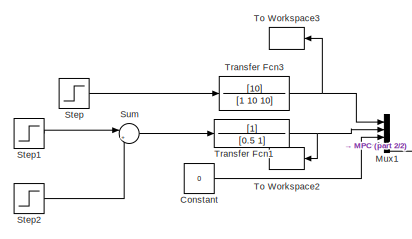
[diagram: root canvas - part 1/2, top left region]
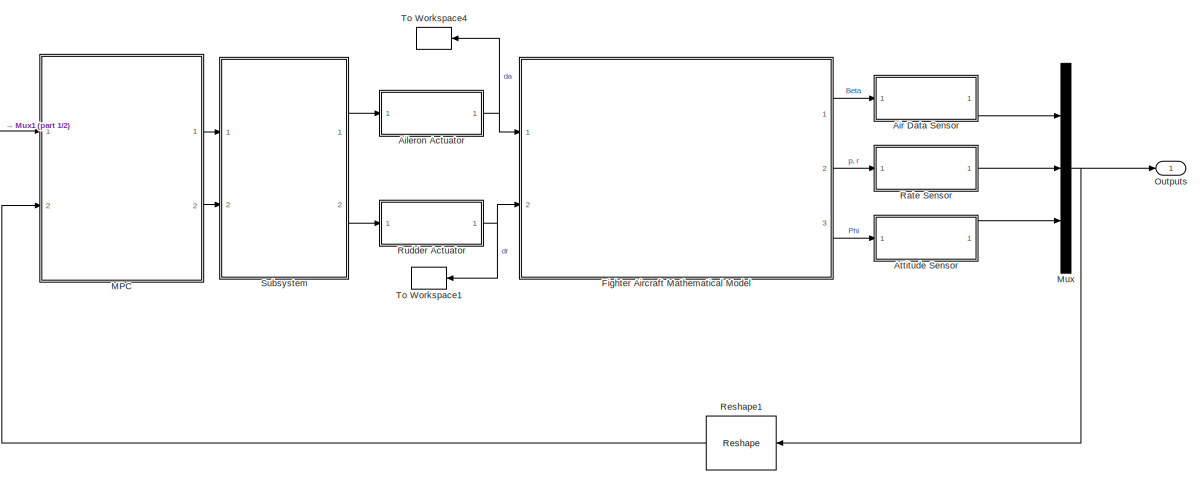
[diagram: root canvas - part 2/2, most of the canvas]
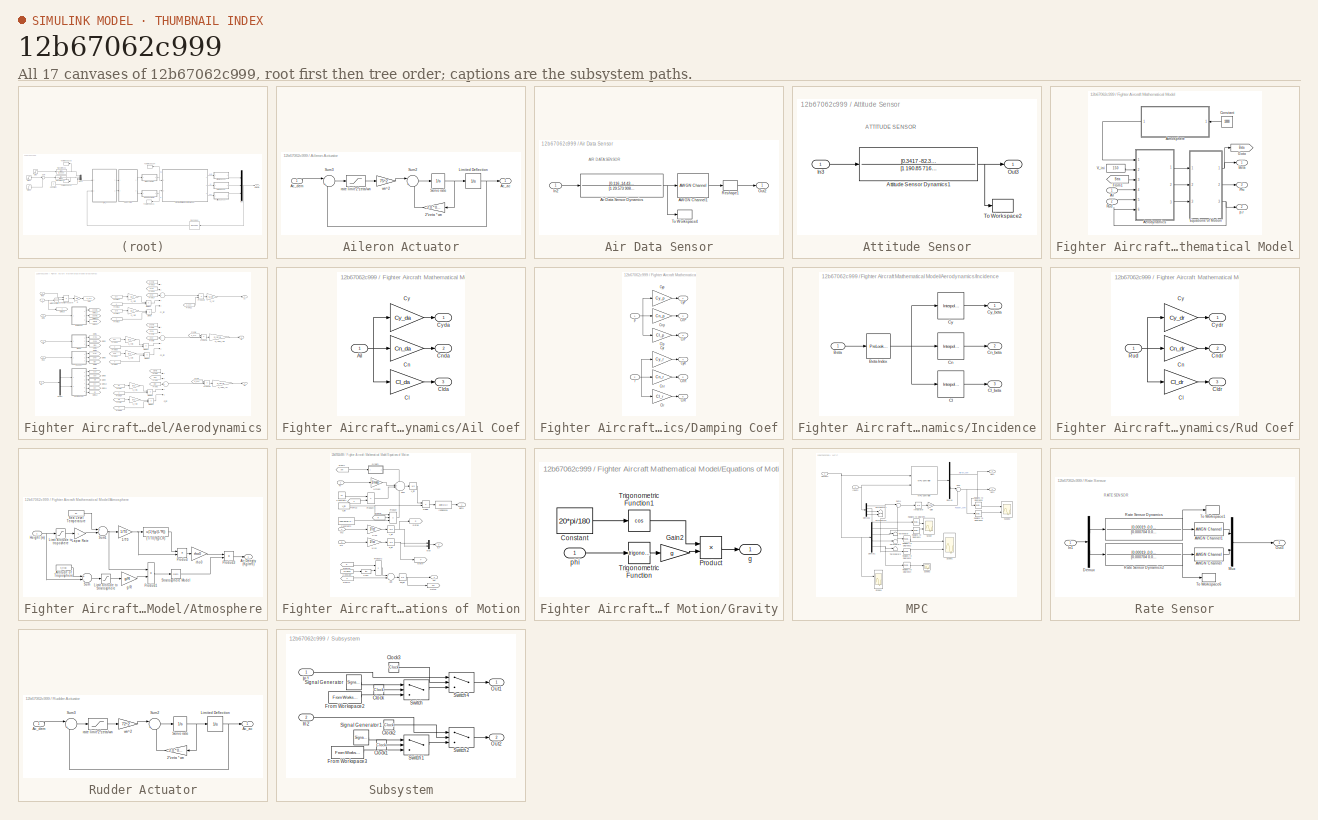
[diagram: thumbnail index - all 17 canvases of the model, root first then tree order]
MODEL slx_12b67062c999
KIND model
CONFIG AbsTol = auto
CONFIG EnableMultiTasking = off
CONFIG FixedStep = dt_sim
CONFIG MaxStep = auto
CONFIG MinStep = auto
CONFIG RelTol = 1e-3
CONFIG SampleTimeConstraint = Unconstrained
CONFIG Solver = ode4
CONFIG SolverName = ode4
CONFIG StartTime = 0.0
CONFIG StopTime = T_final
BLOCK [SubSystem] Aileron Actuator
  Ports = [1, 1]
  RequestExecContextInheritance = off
BLOCK [Gain] Aileron Actuator/2*zeta * wn
  Gain = 2.0 * 0.6 * 75
BLOCK [Outport] Aileron Actuator/Ac_ac
  IconDisplay = Port number
  InitialOutput = 0
BLOCK [Inport] Aileron Actuator/Ac_dem
  IconDisplay = Port number
BLOCK [Integrator] Aileron Actuator/Limited Deflection
  LimitOutput = on
  LowerSaturationLimit = -25*pi/180
  Ports = [1, 1]
  UpperSaturationLimit = 25*pi/180
BLOCK [Integrator] Aileron Actuator/Servo rate
  Ports = [1, 1]
BLOCK [Sum] Aileron Actuator/Sum2
  IconShape = round
  Inputs = |+-
  Ports = [2, 1]
BLOCK [Sum] Aileron Actuator/Sum3
  IconShape = round
  Inputs = |+-
  Ports = [2, 1]
BLOCK [Saturate] Aileron Actuator/rate limit*2*zeta//wn
  InputPortMap = u0
  LowerLimit = -(80*pi/180)*2*0.6/75
  Ports = [1, 1]
  UpperLimit = (80*pi/180)*2*0.6/75
BLOCK [Gain] Aileron Actuator/wn^2
  Gain = 75^2
BLOCK [SubSystem] Air Data Sensor
  Ports = [1, 1]
  RequestExecContextInheritance = off
BLOCK [Reference] Air Data Sensor/AWGN Channel1  REF=commchan3/AWGN
Channel
  Ports = [1, 1]
  SourceBlock = commchan3/AWGN\nChannel
  SourceProductBaseCode = CM
  SourceProductName = Communications System Toolbox
  SourceType = AWGN Channel
  UserDataPersistent = on
BLOCK [TransferFcn] Air Data Sensor/Air Data Sensor Dynamics
  Denominator = [1 29.573 908.77]
  Numerator = [0.116 -14.437 905.92]
BLOCK [Inport] Air Data Sensor/In2
  IconDisplay = Port number
BLOCK [Outport] Air Data Sensor/Out2
  IconDisplay = Port number
BLOCK [Reshape] Air Data Sensor/Reshape1
  OutputDimensionality = Customize
  Ports = [1, 1]
BLOCK [ToWorkspace] Air Data Sensor/To Workspace4
  MaxDataPoints = inf
  Ports = [1]
  SampleTime = -1
  SaveFormat = Structure With Time
  VariableName = Beta
BLOCK [SubSystem] Attitude Sensor
  Ports = [1, 1]
  RequestExecContextInheritance = off
BLOCK [TransferFcn] Attitude Sensor/Attitude Sensor Dynamics1
  Denominator = [1 190.85 7162.3]
  Numerator = [0.3417 -82.317 7161.8]
BLOCK [Inport] Attitude Sensor/In3
  IconDisplay = Port number
BLOCK [Outport] Attitude Sensor/Out3
  IconDisplay = Port number
BLOCK [ToWorkspace] Attitude Sensor/To Workspace2
  MaxDataPoints = inf
  Ports = [1]
  SampleTime = -1
  SaveFormat = Structure With Time
  VariableName = Phi
BLOCK [Constant] Constant
  Value = 0
BLOCK [SubSystem] Fighter Aircraft Mathematical Model
  Ports = [2, 3]
  RequestExecContextInheritance = off
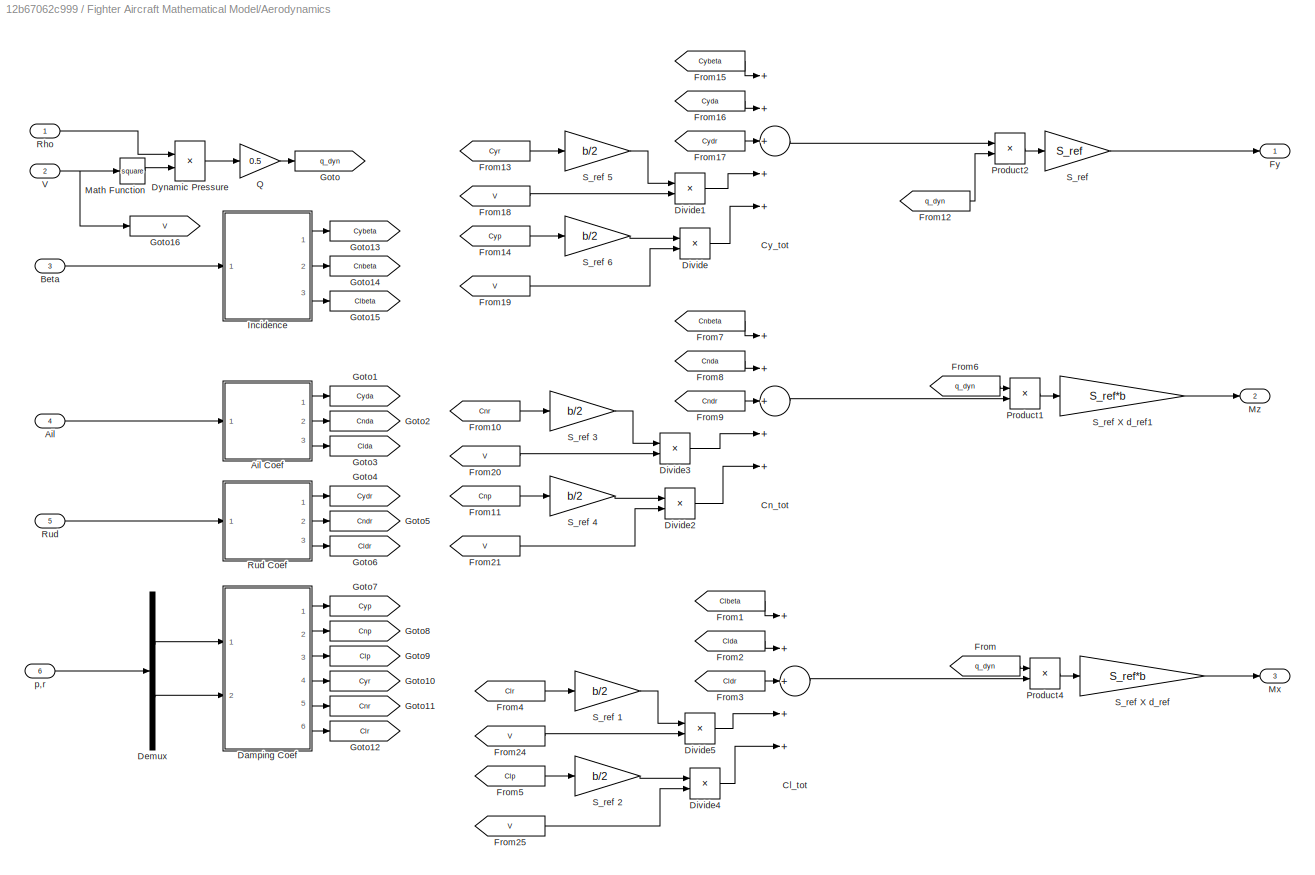
BLOCK [SubSystem] Fighter Aircraft Mathematical Model/Aerodynamics
  Ports = [6, 3]
  RequestExecContextInheritance = off
BLOCK [Outport] Fighter Aircraft Mathematical Model/Aerodynamics/ Mx
  IconDisplay = Port number
  InitialOutput = 0
  Port = 3
BLOCK [Outport] Fighter Aircraft Mathematical Model/Aerodynamics/ Mz
  IconDisplay = Port number
  InitialOutput = 0
  Port = 2
BLOCK [Inport] Fighter Aircraft Mathematical Model/Aerodynamics/Ail
  IconDisplay = Port number
  Port = 4
BLOCK [SubSystem] Fighter Aircraft Mathematical Model/Aerodynamics/Ail Coef
  Ports = [1, 3]
  RequestExecContextInheritance = off
BLOCK [Inport] Fighter Aircraft Mathematical Model/Aerodynamics/Ail Coef/Ail
  IconDisplay = Port number
BLOCK [Gain] Fighter Aircraft Mathematical Model/Aerodynamics/Ail Coef/Cl
  Gain = Cl_da
BLOCK [Outport] Fighter Aircraft Mathematical Model/Aerodynamics/Ail Coef/Clda
  IconDisplay = Port number
  InitialOutput = 0
  Port = 3
BLOCK [Gain] Fighter Aircraft Mathematical Model/Aerodynamics/Ail Coef/Cn
  Gain = Cn_da
BLOCK [Outport] Fighter Aircraft Mathematical Model/Aerodynamics/Ail Coef/Cnda
  IconDisplay = Port number
  InitialOutput = 0
  Port = 2
BLOCK [Gain] Fighter Aircraft Mathematical Model/Aerodynamics/Ail Coef/Cy
  Gain = Cy_da
BLOCK [Outport] Fighter Aircraft Mathematical Model/Aerodynamics/Ail Coef/Cyda
  IconDisplay = Port number
  InitialOutput = 0
BLOCK [Inport] Fighter Aircraft Mathematical Model/Aerodynamics/Beta
  IconDisplay = Port number
  Port = 3
BLOCK [Sum] Fighter Aircraft Mathematical Model/Aerodynamics/Cl_tot
  Inputs = +++++
  Ports = [5, 1]
BLOCK [Sum] Fighter Aircraft Mathematical Model/Aerodynamics/Cn_tot
  Inputs = +++++
  Ports = [5, 1]
BLOCK [Sum] Fighter Aircraft Mathematical Model/Aerodynamics/Cy_tot
  Inputs = +++++
  Ports = [5, 1]
BLOCK [SubSystem] Fighter Aircraft Mathematical Model/Aerodynamics/Damping Coef
  Ports = [2, 6]
  RequestExecContextInheritance = off
BLOCK [Outport] Fighter Aircraft Mathematical Model/Aerodynamics/Damping Coef/ClP
  IconDisplay = Port number
  InitialOutput = 0
  Port = 3
BLOCK [Outport] Fighter Aircraft Mathematical Model/Aerodynamics/Damping Coef/ClR
  IconDisplay = Port number
  InitialOutput = 0
  Port = 6
BLOCK [Gain] Fighter Aircraft Mathematical Model/Aerodynamics/Damping Coef/Clp
  Gain = Cl_p
BLOCK [Gain] Fighter Aircraft Mathematical Model/Aerodynamics/Damping Coef/Clr
  Gain = Cl_r
BLOCK [Outport] Fighter Aircraft Mathematical Model/Aerodynamics/Damping Coef/CnP
  IconDisplay = Port number
  InitialOutput = 0
  Port = 2
BLOCK [Outport] Fighter Aircraft Mathematical Model/Aerodynamics/Damping Coef/CnR
  IconDisplay = Port number
  InitialOutput = 0
  Port = 5
BLOCK [Gain] Fighter Aircraft Mathematical Model/Aerodynamics/Damping Coef/Cnp
  Gain = Cn_p
BLOCK [Gain] Fighter Aircraft Mathematical Model/Aerodynamics/Damping Coef/Cnr
  Gain = Cn_r
BLOCK [Outport] Fighter Aircraft Mathematical Model/Aerodynamics/Damping Coef/CyP
  IconDisplay = Port number
  InitialOutput = 0
BLOCK [Outport] Fighter Aircraft Mathematical Model/Aerodynamics/Damping Coef/CyR
  IconDisplay = Port number
  InitialOutput = 0
  Port = 4
BLOCK [Gain] Fighter Aircraft Mathematical Model/Aerodynamics/Damping Coef/Cyp
  Gain = Cy_p
BLOCK [Gain] Fighter Aircraft Mathematical Model/Aerodynamics/Damping Coef/Cyr
  Gain = Cy_r
BLOCK [Inport] Fighter Aircraft Mathematical Model/Aerodynamics/Damping Coef/p
  IconDisplay = Port number
BLOCK [Inport] Fighter Aircraft Mathematical Model/Aerodynamics/Damping Coef/r
  IconDisplay = Port number
  Port = 2
BLOCK [Demux] Fighter Aircraft Mathematical Model/Aerodynamics/Demux
  DisplayOption = bar
  Outputs = 2
  Ports = [1, 2]
BLOCK [Product] Fighter Aircraft Mathematical Model/Aerodynamics/Divide
  InputSameDT = off
  Inputs = */
  OutDataTypeStr = Inherit: Inherit via internal rule
  Ports = [2, 1]
  RndMeth = Floor
  SaturateOnIntegerOverflow = off
BLOCK [Product] Fighter Aircraft Mathematical Model/Aerodynamics/Divide1
  InputSameDT = off
  Inputs = */
  OutDataTypeStr = Inherit: Inherit via internal rule
  Ports = [2, 1]
  RndMeth = Floor
  SaturateOnIntegerOverflow = off
BLOCK [Product] Fighter Aircraft Mathematical Model/Aerodynamics/Divide2
  InputSameDT = off
  Inputs = */
  OutDataTypeStr = Inherit: Inherit via internal rule
  Ports = [2, 1]
  RndMeth = Floor
  SaturateOnIntegerOverflow = off
BLOCK [Product] Fighter Aircraft Mathematical Model/Aerodynamics/Divide3
  InputSameDT = off
  Inputs = */
  OutDataTypeStr = Inherit: Inherit via internal rule
  Ports = [2, 1]
  RndMeth = Floor
  SaturateOnIntegerOverflow = off
BLOCK [Product] Fighter Aircraft Mathematical Model/Aerodynamics/Divide4
  InputSameDT = off
  Inputs = */
  OutDataTypeStr = Inherit: Inherit via internal rule
  Ports = [2, 1]
  RndMeth = Floor
  SaturateOnIntegerOverflow = off
BLOCK [Product] Fighter Aircraft Mathematical Model/Aerodynamics/Divide5
  InputSameDT = off
  Inputs = */
  OutDataTypeStr = Inherit: Inherit via internal rule
  Ports = [2, 1]
  RndMeth = Floor
  SaturateOnIntegerOverflow = off
BLOCK [Product] Fighter Aircraft Mathematical Model/Aerodynamics/Dynamic Pressure
  Ports = [2, 1]
  RndMeth = Floor
BLOCK [From] Fighter Aircraft Mathematical Model/Aerodynamics/From
  GotoTag = q_dyn
BLOCK [From] Fighter Aircraft Mathematical Model/Aerodynamics/From1
  GotoTag = Clbeta
BLOCK [From] Fighter Aircraft Mathematical Model/Aerodynamics/From10
  GotoTag = Cnr
BLOCK [From] Fighter Aircraft Mathematical Model/Aerodynamics/From11
  GotoTag = Cnp
BLOCK [From] Fighter Aircraft Mathematical Model/Aerodynamics/From12
  GotoTag = q_dyn
BLOCK [From] Fighter Aircraft Mathematical Model/Aerodynamics/From13
  GotoTag = Cyr
BLOCK [From] Fighter Aircraft Mathematical Model/Aerodynamics/From14
  GotoTag = Cyp
BLOCK [From] Fighter Aircraft Mathematical Model/Aerodynamics/From15
  GotoTag = Cybeta
BLOCK [From] Fighter Aircraft Mathematical Model/Aerodynamics/From16
  GotoTag = Cyda
BLOCK [From] Fighter Aircraft Mathematical Model/Aerodynamics/From17
  GotoTag = Cydr
BLOCK [From] Fighter Aircraft Mathematical Model/Aerodynamics/From18
  GotoTag = V
BLOCK [From] Fighter Aircraft Mathematical Model/Aerodynamics/From19
  GotoTag = V
BLOCK [From] Fighter Aircraft Mathematical Model/Aerodynamics/From2
  GotoTag = Clda
BLOCK [From] Fighter Aircraft Mathematical Model/Aerodynamics/From20
  GotoTag = V
BLOCK [From] Fighter Aircraft Mathematical Model/Aerodynamics/From21
  GotoTag = V
BLOCK [From] Fighter Aircraft Mathematical Model/Aerodynamics/From24
  GotoTag = V
BLOCK [From] Fighter Aircraft Mathematical Model/Aerodynamics/From25
  GotoTag = V
BLOCK [From] Fighter Aircraft Mathematical Model/Aerodynamics/From3
  GotoTag = Cldr
BLOCK [From] Fighter Aircraft Mathematical Model/Aerodynamics/From4
  GotoTag = Clr
BLOCK [From] Fighter Aircraft Mathematical Model/Aerodynamics/From5
  GotoTag = Clp
BLOCK [From] Fighter Aircraft Mathematical Model/Aerodynamics/From6
  GotoTag = q_dyn
BLOCK [From] Fighter Aircraft Mathematical Model/Aerodynamics/From7
  GotoTag = Cnbeta
BLOCK [From] Fighter Aircraft Mathematical Model/Aerodynamics/From8
  GotoTag = Cnda
BLOCK [From] Fighter Aircraft Mathematical Model/Aerodynamics/From9
  GotoTag = Cndr
BLOCK [Outport] Fighter Aircraft Mathematical Model/Aerodynamics/Fy
  IconDisplay = Port number
  InitialOutput = [0]
BLOCK [Goto] Fighter Aircraft Mathematical Model/Aerodynamics/Goto
  GotoTag = q_dyn
BLOCK [Goto] Fighter Aircraft Mathematical Model/Aerodynamics/Goto1
  GotoTag = Cyda
BLOCK [Goto] Fighter Aircraft Mathematical Model/Aerodynamics/Goto10
  GotoTag = Cyr
BLOCK [Goto] Fighter Aircraft Mathematical Model/Aerodynamics/Goto11
  GotoTag = Cnr
BLOCK [Goto] Fighter Aircraft Mathematical Model/Aerodynamics/Goto12
  GotoTag = Clr
BLOCK [Goto] Fighter Aircraft Mathematical Model/Aerodynamics/Goto13
  GotoTag = Cybeta
BLOCK [Goto] Fighter Aircraft Mathematical Model/Aerodynamics/Goto14
  GotoTag = Cnbeta
BLOCK [Goto] Fighter Aircraft Mathematical Model/Aerodynamics/Goto15
  GotoTag = Clbeta
BLOCK [Goto] Fighter Aircraft Mathematical Model/Aerodynamics/Goto16
  GotoTag = V
BLOCK [Goto] Fighter Aircraft Mathematical Model/Aerodynamics/Goto2
  GotoTag = Cnda
BLOCK [Goto] Fighter Aircraft Mathematical Model/Aerodynamics/Goto3
  GotoTag = Clda
BLOCK [Goto] Fighter Aircraft Mathematical Model/Aerodynamics/Goto4
  GotoTag = Cydr
BLOCK [Goto] Fighter Aircraft Mathematical Model/Aerodynamics/Goto5
  GotoTag = Cndr
BLOCK [Goto] Fighter Aircraft Mathematical Model/Aerodynamics/Goto6
  GotoTag = Cldr
BLOCK [Goto] Fighter Aircraft Mathematical Model/Aerodynamics/Goto7
  GotoTag = Cyp
BLOCK [Goto] Fighter Aircraft Mathematical Model/Aerodynamics/Goto8
  GotoTag = Cnp
BLOCK [Goto] Fighter Aircraft Mathematical Model/Aerodynamics/Goto9
  GotoTag = Clp
BLOCK [SubSystem] Fighter Aircraft Mathematical Model/Aerodynamics/Incidence
  Ports = [1, 3]
  RequestExecContextInheritance = off
BLOCK [Inport] Fighter Aircraft Mathematical Model/Aerodynamics/Incidence/Beta
  IconDisplay = Port number
BLOCK [Reference] Fighter Aircraft Mathematical Model/Aerodynamics/Incidence/Beta Index  REF=simulink_need_slupdate/PreLookup
Index Search
  Ports = [1, 1]
  SourceBlock = simulink_need_slupdate/PreLookup\nIndex Search
  SourceProductBaseCode = SL
  SourceProductName = Simulink
  SourceType = LookupIdxSearch
BLOCK [Reference] Fighter Aircraft Mathematical Model/Aerodynamics/Incidence/Cl  REF=simulink_need_slupdate/Interpolation (n-D)
using PreLookup
  Ports = [1, 1]
  SourceBlock = simulink_need_slupdate/Interpolation (n-D)\nusing PreLookup
  SourceProductBaseCode = SL
  SourceProductName = Simulink
  SourceType = LookupNDInterpIdx
BLOCK [Outport] Fighter Aircraft Mathematical Model/Aerodynamics/Incidence/Cl_beta
  IconDisplay = Port number
  InitialOutput = 0
  Port = 3
BLOCK [Reference] Fighter Aircraft Mathematical Model/Aerodynamics/Incidence/Cn  REF=simulink_need_slupdate/Interpolation (n-D)
using PreLookup
  Ports = [1, 1]
  SourceBlock = simulink_need_slupdate/Interpolation (n-D)\nusing PreLookup
  SourceProductBaseCode = SL
  SourceProductName = Simulink
  SourceType = LookupNDInterpIdx
BLOCK [Outport] Fighter Aircraft Mathematical Model/Aerodynamics/Incidence/Cn_beta
  IconDisplay = Port number
  InitialOutput = 0
  Port = 2
BLOCK [Reference] Fighter Aircraft Mathematical Model/Aerodynamics/Incidence/Cy  REF=simulink_need_slupdate/Interpolation (n-D)
using PreLookup
  Ports = [1, 1]
  SourceBlock = simulink_need_slupdate/Interpolation (n-D)\nusing PreLookup
  SourceProductBaseCode = SL
  SourceProductName = Simulink
  SourceType = LookupNDInterpIdx
BLOCK [Outport] Fighter Aircraft Mathematical Model/Aerodynamics/Incidence/Cy_beta
  IconDisplay = Port number
  InitialOutput = 0
BLOCK [Math] Fighter Aircraft Mathematical Model/Aerodynamics/Math Function
  Operator = square
  Ports = [1, 1]
BLOCK [Product] Fighter Aircraft Mathematical Model/Aerodynamics/Product1
  Ports = [2, 1]
  RndMeth = Floor
BLOCK [Product] Fighter Aircraft Mathematical Model/Aerodynamics/Product2
  Ports = [2, 1]
  RndMeth = Floor
BLOCK [Product] Fighter Aircraft Mathematical Model/Aerodynamics/Product4
  Ports = [2, 1]
  RndMeth = Floor
BLOCK [Gain] Fighter Aircraft Mathematical Model/Aerodynamics/Q
  Gain = 0.5
BLOCK [Inport] Fighter Aircraft Mathematical Model/Aerodynamics/Rho
  IconDisplay = Port number
BLOCK [Inport] Fighter Aircraft Mathematical Model/Aerodynamics/Rud
  IconDisplay = Port number
  Port = 5
BLOCK [SubSystem] Fighter Aircraft Mathematical Model/Aerodynamics/Rud Coef
  Ports = [1, 3]
  RequestExecContextInheritance = off
BLOCK [Gain] Fighter Aircraft Mathematical Model/Aerodynamics/Rud Coef/Cl
  Gain = Cl_dr
BLOCK [Outport] Fighter Aircraft Mathematical Model/Aerodynamics/Rud Coef/Cldr
  IconDisplay = Port number
  InitialOutput = 0
  Port = 3
BLOCK [Gain] Fighter Aircraft Mathematical Model/Aerodynamics/Rud Coef/Cn
  Gain = Cn_dr
BLOCK [Outport] Fighter Aircraft Mathematical Model/Aerodynamics/Rud Coef/Cndr
  IconDisplay = Port number
  InitialOutput = 0
  Port = 2
BLOCK [Gain] Fighter Aircraft Mathematical Model/Aerodynamics/Rud Coef/Cy
  Gain = Cy_dr
BLOCK [Outport] Fighter Aircraft Mathematical Model/Aerodynamics/Rud Coef/Cydr
  IconDisplay = Port number
  InitialOutput = 0
BLOCK [Inport] Fighter Aircraft Mathematical Model/Aerodynamics/Rud Coef/Rud
  IconDisplay = Port number
BLOCK [Gain] Fighter Aircraft Mathematical Model/Aerodynamics/S_ref
  Gain = S_ref
BLOCK [Gain] Fighter Aircraft Mathematical Model/Aerodynamics/S_ref 1
  Gain = b/2
BLOCK [Gain] Fighter Aircraft Mathematical Model/Aerodynamics/S_ref 2
  Gain = b/2
BLOCK [Gain] Fighter Aircraft Mathematical Model/Aerodynamics/S_ref 3
  Gain = b/2
BLOCK [Gain] Fighter Aircraft Mathematical Model/Aerodynamics/S_ref 4
  Gain = b/2
BLOCK [Gain] Fighter Aircraft Mathematical Model/Aerodynamics/S_ref 5
  Gain = b/2
BLOCK [Gain] Fighter Aircraft Mathematical Model/Aerodynamics/S_ref 6
  Gain = b/2
BLOCK [Gain] Fighter Aircraft Mathematical Model/Aerodynamics/S_ref X d_ref
  Gain = S_ref*b
BLOCK [Gain] Fighter Aircraft Mathematical Model/Aerodynamics/S_ref X d_ref1
  Gain = S_ref*b
BLOCK [Inport] Fighter Aircraft Mathematical Model/Aerodynamics/V
  IconDisplay = Port number
  Port = 2
BLOCK [Inport] Fighter Aircraft Mathematical Model/Aerodynamics/p,r
  IconDisplay = Port number
  Port = 6
BLOCK [Inport] Fighter Aircraft Mathematical Model/Ail
  IconDisplay = Port number
BLOCK [SubSystem] Fighter Aircraft Mathematical Model/Atmosphere
  AncestorBlock = aerospace/Atmosphere/Atmosphere\nmodel
  Ports = [1, 1]
  RequestExecContextInheritance = off
BLOCK [Fcn] Fighter Aircraft Mathematical Model/Atmosphere/(T//T0)^(g//LR)
  Expr = u(1)^(g/(L*R))
BLOCK [Gain] Fighter Aircraft Mathematical Model/Atmosphere/1//T0
  Gain = 1/T0
BLOCK [Outport] Fighter Aircraft Mathematical Model/Atmosphere/Air Density (Kg//m^3)
  IconDisplay = Port number
  InitialOutput = 0
BLOCK [Constant] Fighter Aircraft Mathematical Model/Atmosphere/Altitude of Troposphere
  Value = h_trop
BLOCK [Inport] Fighter Aircraft Mathematical Model/Atmosphere/Height (m)
  IconDisplay = Port number
BLOCK [Gain] Fighter Aircraft Mathematical Model/Atmosphere/Lapse Rate
  Gain = L
BLOCK [Saturate] Fighter Aircraft Mathematical Model/Atmosphere/Limit altitude  to Stratosphere
  InputPortMap = u0
  LowerLimit = h_trop-20000
  Ports = [1, 1]
  UpperLimit = 0
BLOCK [Saturate] Fighter Aircraft Mathematical Model/Atmosphere/Limit altitude  to troposhere
  InputPortMap = u0
  LowerLimit = 0
  Ports = [1, 1]
  UpperLimit = h_trop
BLOCK [Product] Fighter Aircraft Mathematical Model/Atmosphere/Product
  Inputs = */
  Ports = [2, 1]
BLOCK [Product] Fighter Aircraft Mathematical Model/Atmosphere/Product1
  Inputs = /*
  Ports = [2, 1]
BLOCK [Product] Fighter Aircraft Mathematical Model/Atmosphere/Product3
  Ports = [2, 1]
BLOCK [Constant] Fighter Aircraft Mathematical Model/Atmosphere/Sea Level Temperature
  Value = T0
BLOCK [Math] Fighter Aircraft Mathematical Model/Atmosphere/Stratosphere Model
  Ports = [1, 1]
BLOCK [Sum] Fighter Aircraft Mathematical Model/Atmosphere/Sum
  Inputs = +-
  Ports = [2, 1]
BLOCK [Sum] Fighter Aircraft Mathematical Model/Atmosphere/Sum1
  Inputs = +-
  Ports = [2, 1]
BLOCK [Gain] Fighter Aircraft Mathematical Model/Atmosphere/g//R
  Gain = g/R
BLOCK [Gain] Fighter Aircraft Mathematical Model/Atmosphere/rho0
  Gain = rho0
BLOCK [Outport] Fighter Aircraft Mathematical Model/Beta
  IconDisplay = Port number
  InitialOutput = 0
BLOCK [Constant] Fighter Aircraft Mathematical Model/Constant
  Value = 10000
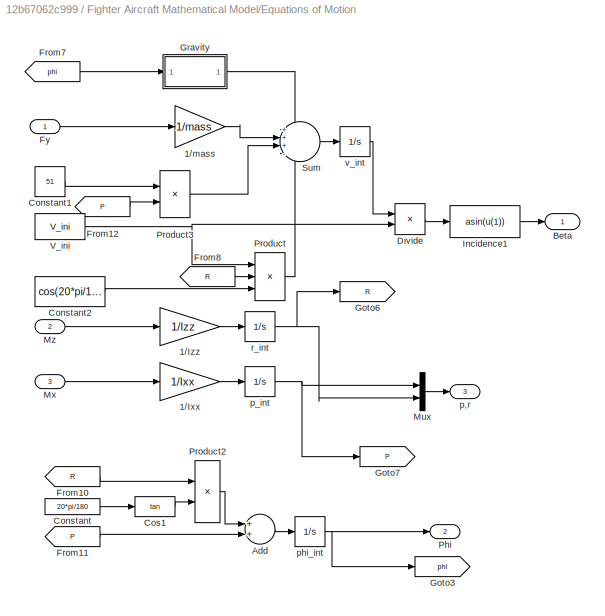
BLOCK [SubSystem] Fighter Aircraft Mathematical Model/Equations of Motion
  Ports = [3, 3]
  RequestExecContextInheritance = off
BLOCK [Gain] Fighter Aircraft Mathematical Model/Equations of Motion/1//Ixx
  Gain = 1/Ixx
BLOCK [Gain] Fighter Aircraft Mathematical Model/Equations of Motion/1//Izz
  Gain = 1/Izz
BLOCK [Gain] Fighter Aircraft Mathematical Model/Equations of Motion/1//mass
  Gain = 1/mass
BLOCK [Sum] Fighter Aircraft Mathematical Model/Equations of Motion/Add
  InputSameDT = off
  OutDataTypeStr = Inherit: Inherit via internal rule
  Ports = [2, 1]
  SaturateOnIntegerOverflow = off
BLOCK [Outport] Fighter Aircraft Mathematical Model/Equations of Motion/Beta
  IconDisplay = Port number
  InitialOutput = 0
BLOCK [Constant] Fighter Aircraft Mathematical Model/Equations of Motion/Constant
  Value = 20*pi/180
BLOCK [Constant] Fighter Aircraft Mathematical Model/Equations of Motion/Constant1
  Value = 51
BLOCK [Constant] Fighter Aircraft Mathematical Model/Equations of Motion/Constant2
  Value = cos(20*pi/180)
BLOCK [Trigonometry] Fighter Aircraft Mathematical Model/Equations of Motion/Cos1
  Operator = tan
  Ports = [1, 1]
BLOCK [Product] Fighter Aircraft Mathematical Model/Equations of Motion/Divide
  InputSameDT = off
  Inputs = */
  OutDataTypeStr = Inherit: Inherit via internal rule
  Ports = [2, 1]
  RndMeth = Floor
  SaturateOnIntegerOverflow = off
BLOCK [From] Fighter Aircraft Mathematical Model/Equations of Motion/From10
  GotoTag = R
BLOCK [From] Fighter Aircraft Mathematical Model/Equations of Motion/From11
  GotoTag = P
BLOCK [From] Fighter Aircraft Mathematical Model/Equations of Motion/From12
  GotoTag = P
BLOCK [From] Fighter Aircraft Mathematical Model/Equations of Motion/From7
  GotoTag = phi
BLOCK [From] Fighter Aircraft Mathematical Model/Equations of Motion/From8
  GotoTag = R
BLOCK [Inport] Fighter Aircraft Mathematical Model/Equations of Motion/Fy
  IconDisplay = Port number
BLOCK [Goto] Fighter Aircraft Mathematical Model/Equations of Motion/Goto3
  GotoTag = phi
BLOCK [Goto] Fighter Aircraft Mathematical Model/Equations of Motion/Goto6
  GotoTag = R
BLOCK [Goto] Fighter Aircraft Mathematical Model/Equations of Motion/Goto7
  GotoTag = P
BLOCK [SubSystem] Fighter Aircraft Mathematical Model/Equations of Motion/Gravity
  Ports = [1, 1]
  RequestExecContextInheritance = off
BLOCK [Constant] Fighter Aircraft Mathematical Model/Equations of Motion/Gravity/Constant
  Value = 20*pi/180
BLOCK [Gain] Fighter Aircraft Mathematical Model/Equations of Motion/Gravity/Gain2
  Gain = g
BLOCK [Product] Fighter Aircraft Mathematical Model/Equations of Motion/Gravity/Product
  InputSameDT = off
  OutDataTypeStr = Inherit: Inherit via internal rule
  Ports = [2, 1]
  RndMeth = Floor
  SaturateOnIntegerOverflow = off
BLOCK [Trigonometry] Fighter Aircraft Mathematical Model/Equations of Motion/Gravity/Trigonometric Function
  Ports = [1, 1]
BLOCK [Trigonometry] Fighter Aircraft Mathematical Model/Equations of Motion/Gravity/Trigonometric Function1
  Operator = cos
  Ports = [1, 1]
BLOCK [Outport] Fighter Aircraft Mathematical Model/Equations of Motion/Gravity/g
  IconDisplay = Port number
BLOCK [Inport] Fighter Aircraft Mathematical Model/Equations of Motion/Gravity/phi
  IconDisplay = Port number
BLOCK [Fcn] Fighter Aircraft Mathematical Model/Equations of Motion/Incidence1
  Expr = asin(u(1))
BLOCK [Mux] Fighter Aircraft Mathematical Model/Equations of Motion/Mux
  DisplayOption = bar
  Inputs = 2
  Ports = [2, 1]
BLOCK [Inport] Fighter Aircraft Mathematical Model/Equations of Motion/Mx
  IconDisplay = Port number
  Port = 3
BLOCK [Inport] Fighter Aircraft Mathematical Model/Equations of Motion/Mz
  IconDisplay = Port number
  Port = 2
BLOCK [Outport] Fighter Aircraft Mathematical Model/Equations of Motion/Phi
  IconDisplay = Port number
  InitialOutput = 0
  Port = 2
BLOCK [Product] Fighter Aircraft Mathematical Model/Equations of Motion/Product
  Inputs = 3
  Ports = [3, 1]
BLOCK [Product] Fighter Aircraft Mathematical Model/Equations of Motion/Product2
  Ports = [2, 1]
BLOCK [Product] Fighter Aircraft Mathematical Model/Equations of Motion/Product3
  Ports = [2, 1]
BLOCK [Sum] Fighter Aircraft Mathematical Model/Equations of Motion/Sum
  IconShape = round
  Inputs = +++-
  Ports = [4, 1]
BLOCK [Constant] Fighter Aircraft Mathematical Model/Equations of Motion/V_ini
  Value = V_ini
BLOCK [Outport] Fighter Aircraft Mathematical Model/Equations of Motion/p,r
  IconDisplay = Port number
  InitialOutput = 0
  Port = 3
BLOCK [Integrator] Fighter Aircraft Mathematical Model/Equations of Motion/p_int
  Ports = [1, 1]
BLOCK [Integrator] Fighter Aircraft Mathematical Model/Equations of Motion/phi_int
  Ports = [1, 1]
  WrapState = on
BLOCK [Integrator] Fighter Aircraft Mathematical Model/Equations of Motion/r_int
  Ports = [1, 1]
BLOCK [Integrator] Fighter Aircraft Mathematical Model/Equations of Motion/v_int
  Ports = [1, 1]
BLOCK [From] Fighter Aircraft Mathematical Model/From1
  GotoTag = Beta
BLOCK [Goto] Fighter Aircraft Mathematical Model/Goto
  GotoTag = Beta
BLOCK [Outport] Fighter Aircraft Mathematical Model/Phi
  IconDisplay = Port number
  InitialOutput = 0
  Port = 3
BLOCK [Inport] Fighter Aircraft Mathematical Model/Rud
  IconDisplay = Port number
  Port = 2
BLOCK [Constant] Fighter Aircraft Mathematical Model/V_ini
  Value = 150
BLOCK [Outport] Fighter Aircraft Mathematical Model/p,r
  IconDisplay = Port number
  InitialOutput = 0
  Port = 2
BLOCK [SubSystem] MPC
  Ports = [2, 2]
  RequestExecContextInheritance = off
BLOCK [Demux] MPC/Demux
  DisplayOption = bar
  Outputs = 2
  Ports = [1, 2]
BLOCK [Demux] MPC/Demux1
  DisplayOption = bar
  Ports = [1, 4]
BLOCK [Demux] MPC/Demux2
  DisplayOption = bar
  Ports = [1, 4]
BLOCK [Gain] MPC/Gain
  Gain = 0.25
  OutDataTypeStr = Inherit: Inherit via internal rule
  ParamDataTypeStr = Inherit: Inherit via internal rule
  SaturateOnIntegerOverflow = off
BLOCK [Inport] MPC/Inputs 
  IconDisplay = Port number
BLOCK [Integrator] MPC/Integrator
  Ports = [1, 1]
BLOCK [Reference] MPC/MPC Controller  REF=mpclib/MPC Controller  (lib defined in mdl_ae329e0e0455)
  Ports = [2, 1]
  SCDEnableBlockLinearizationSpecification = on
  SourceBlock = mpclib/MPC Controller
  SourceProductBaseCode = MP
  SourceProductName = Model Predictive Control Toolbox
  SourceType = MPC
BLOCK [Outport] MPC/Out1
  IconDisplay = Port number
BLOCK [Outport] MPC/Out2
  IconDisplay = Port number
  Port = 2
BLOCK [Inport] MPC/Outputs 
  IconDisplay = Port number
  Port = 2
BLOCK [Reference] MPC/Radians to Degrees  REF=simulink_extras/Transformations/Radians
to Degrees
  Ports = [1, 1]
  SourceBlock = simulink_extras/Transformations/Radians\nto Degrees
  SourceProductBaseCode = SL
  SourceProductName = Simulink
  SourceType = RadiansToDegrees
BLOCK [Reference] MPC/Radians to Degrees1  REF=simulink_extras/Transformations/Radians
to Degrees
  Ports = [1, 1]
  SourceBlock = simulink_extras/Transformations/Radians\nto Degrees
  SourceProductBaseCode = SL
  SourceProductName = Simulink
  SourceType = RadiansToDegrees
BLOCK [Reference] MPC/Radians to Degrees2  REF=simulink_extras/Transformations/Radians
to Degrees
  Ports = [1, 1]
  SourceBlock = simulink_extras/Transformations/Radians\nto Degrees
  SourceProductBaseCode = SL
  SourceProductName = Simulink
  SourceType = RadiansToDegrees
BLOCK [Reference] MPC/Radians to Degrees3  REF=simulink_extras/Transformations/Radians
to Degrees
  Ports = [1, 1]
  SourceBlock = simulink_extras/Transformations/Radians\nto Degrees
  SourceProductBaseCode = SL
  SourceProductName = Simulink
  SourceType = RadiansToDegrees
BLOCK [Reference] MPC/Radians to Degrees4  REF=simulink_extras/Transformations/Radians
to Degrees
  Ports = [1, 1]
  SourceBlock = simulink_extras/Transformations/Radians\nto Degrees
  SourceProductBaseCode = SL
  SourceProductName = Simulink
  SourceType = RadiansToDegrees
BLOCK [Reference] MPC/Radians to Degrees5  REF=simulink_extras/Transformations/Radians
to Degrees
  Ports = [1, 1]
  SourceBlock = simulink_extras/Transformations/Radians\nto Degrees
  SourceProductBaseCode = SL
  SourceProductName = Simulink
  SourceType = RadiansToDegrees
BLOCK [Reference] MPC/Radians to Degrees6  REF=simulink_extras/Transformations/Radians
to Degrees
  Ports = [1, 1]
  SourceBlock = simulink_extras/Transformations/Radians\nto Degrees
  SourceProductBaseCode = SL
  SourceProductName = Simulink
  SourceType = RadiansToDegrees
BLOCK [Scope] MPC/Scope
  Floating = off
  NumInputPorts = 2
  Ports = [2]
  ScopeSpecificationString = Simulink.scopes.TimeScopeBlockCfg('CurrentConfiguration', extmgr.ConfigurationSet(extmgr.Configuration('Core','General UI',true),extmgr.Configuration('Core','Source UI',true),extmgr.Configuration('Sources','WiredSimulink',true),extmgr.Configuration('Visuals','Time Domain',true,'SerializedDisplays',{struct('MinYLimReal','-24.94327','MaxYLimReal','27.1924','YLabelReal','','MinYLimMag','0.00000','Max...<+1389ch>
BLOCK [Scope] MPC/Scope1
  Floating = off
  NumInputPorts = 2
  Ports = [2]
  ScopeSpecificationString = Simulink.scopes.TimeScopeBlockCfg('CurrentConfiguration', extmgr.ConfigurationSet(extmgr.Configuration('Core','General UI',true),extmgr.Configuration('Core','Source UI',true),extmgr.Configuration('Sources','WiredSimulink',true,'DataLoggingVariableName','ScopeData1'),extmgr.Configuration('Visuals','Time Domain',true,'SerializedDisplays',{struct('MinYLimReal','-6.72774','MaxYLimReal','6.65345','YLab...<+1447ch>
BLOCK [Scope] MPC/Scope2
  Floating = off
  NumInputPorts = 2
  Ports = [2]
  ScopeSpecificationString = Simulink.scopes.TimeScopeBlockCfg('CurrentConfiguration', extmgr.ConfigurationSet(extmgr.Configuration('Core','General UI',true),extmgr.Configuration('Core','Source UI',true),extmgr.Configuration('Sources','WiredSimulink',true,'DataLoggingVariableName','ScopeData1'),extmgr.Configuration('Visuals','Time Domain',true,'SerializedDisplays',{struct('MinYLimReal','-224.99793','MaxYLimReal','224.99868','...<+1452ch>
BLOCK [Scope] MPC/Scope3
  Floating = off
  NumInputPorts = 2
  Ports = [2]
  ScopeSpecificationString = Simulink.scopes.TimeScopeBlockCfg('CurrentConfiguration', extmgr.ConfigurationSet(extmgr.Configuration('Core','General UI',true),extmgr.Configuration('Core','Source UI',true),extmgr.Configuration('Sources','WiredSimulink',true,'DataLoggingVariableName','ScopeData1'),extmgr.Configuration('Visuals','Time Domain',true,'SerializedDisplays',{struct('MinYLimReal','-17.46812','MaxYLimReal','18.51539','YL...<+1434ch>
BLOCK [Scope] MPC/Scope4
  Floating = off
  NumInputPorts = 2
  Ports = [2]
  ScopeSpecificationString = Simulink.scopes.TimeScopeBlockCfg('CurrentConfiguration', extmgr.ConfigurationSet(extmgr.Configuration('Core','General UI',true),extmgr.Configuration('Core','Source UI',true),extmgr.Configuration('Sources','WiredSimulink',true,'DataLoggingVariableName','ScopeData2'),extmgr.Configuration('Visuals','Time Domain',true,'SerializedDisplays',{struct('MinYLimReal','-0.78419','MaxYLimReal','2.30525','YLab...<+1467ch>
BLOCK [Sum] MPC/Sum
  IconShape = round
  InputSameDT = off
  Inputs = |++
  OutDataTypeStr = Inherit: Inherit via internal rule
  Ports = [2, 1]
  SaturateOnIntegerOverflow = off
BLOCK [Sum] MPC/Sum1
  IconShape = round
  InputSameDT = off
  Inputs = |+-
  OutDataTypeStr = Inherit: Inherit via internal rule
  Ports = [2, 1]
  SaturateOnIntegerOverflow = off
BLOCK [Terminator] MPC/Terminator
BLOCK [Terminator] MPC/Terminator1
BLOCK [Terminator] MPC/Terminator2
BLOCK [Terminator] MPC/Terminator4
BLOCK [Terminator] MPC/Terminator5
BLOCK [Mux] Mux
  DisplayOption = bar
  Inputs = 3
  Ports = [3, 1]
BLOCK [Mux] Mux1
  DisplayOption = bar
  Ports = [4, 1]
BLOCK [Outport] Outputs
  IconDisplay = Port number
BLOCK [SubSystem] Rate Sensor
  Ports = [1, 1]
  RequestExecContextInheritance = off
BLOCK [Reference] Rate Sensor/AWGN Channel  REF=commchan3/AWGN
Channel
  Ports = [1, 1]
  SourceBlock = commchan3/AWGN\nChannel
  SourceProductBaseCode = CM
  SourceProductName = Communications System Toolbox
  SourceType = AWGN Channel
  UserDataPersistent = on
BLOCK [Reference] Rate Sensor/AWGN Channel1  REF=commchan3/AWGN
Channel
  Ports = [1, 1]
  SourceBlock = commchan3/AWGN\nChannel
  SourceProductBaseCode = CM
  SourceProductName = Communications System Toolbox
  SourceType = AWGN Channel
  UserDataPersistent = on
BLOCK [Demux] Rate Sensor/Demux
  DisplayOption = bar
  Outputs = 2
  Ports = [1, 2]
BLOCK [Inport] Rate Sensor/In1
  IconDisplay = Port number
BLOCK [Mux] Rate Sensor/Mux
  DisplayOption = bar
  Inputs = 2
  Ports = [2, 1]
BLOCK [Outport] Rate Sensor/Out3
  IconDisplay = Port number
BLOCK [TransferFcn] Rate Sensor/Rate Sensor Dynamics
  Denominator = [0.000704 0.0401 1]
  Numerator = [0.00019 -0.0173 1]
BLOCK [TransferFcn] Rate Sensor/Rate Sensor Dynamics2
  Denominator = [0.000704 0.0401 1]
  Numerator = [0.00019 -0.0173 1]
BLOCK [ToWorkspace] Rate Sensor/To Workspace1
  MaxDataPoints = inf
  Ports = [1]
  SampleTime = -1
  SaveFormat = Structure With Time
  VariableName = P
BLOCK [ToWorkspace] Rate Sensor/To Workspace6
  MaxDataPoints = inf
  Ports = [1]
  SampleTime = -1
  SaveFormat = Structure With Time
  VariableName = R
BLOCK [Reshape] Reshape1
  OutputDimensionality = Customize
  OutputDimensions = [4,1]
  Ports = [1, 1]
BLOCK [SubSystem] Rudder Actuator
  Ports = [1, 1]
  RequestExecContextInheritance = off
BLOCK [Gain] Rudder Actuator/2*zeta * wn
  Gain = 2.0 * 0.7 * 72
BLOCK [Outport] Rudder Actuator/Ac_ac
  IconDisplay = Port number
  InitialOutput = 0
BLOCK [Inport] Rudder Actuator/Ac_dem
  IconDisplay = Port number
BLOCK [Integrator] Rudder Actuator/Limited Deflection
  LimitOutput = on
  LowerSaturationLimit = -30*pi/180
  Ports = [1, 1]
  UpperSaturationLimit = 30*pi/180
BLOCK [Integrator] Rudder Actuator/Servo rate
  Ports = [1, 1]
BLOCK [Sum] Rudder Actuator/Sum2
  IconShape = round
  Inputs = |+-
  Ports = [2, 1]
BLOCK [Sum] Rudder Actuator/Sum3
  IconShape = round
  Inputs = |+-
  Ports = [2, 1]
BLOCK [Saturate] Rudder Actuator/rate limit*2*zeta//wn
  InputPortMap = u0
  LowerLimit = -(120*pi/180)*2*0.7/72
  Ports = [1, 1]
  UpperLimit = (120*pi/180)*2*0.7/72
BLOCK [Gain] Rudder Actuator/wn^2
  Gain = 72^2
BLOCK [Step] Step
  After = 5*pi/180*0
  SampleTime = 0
  Time = 0
BLOCK [Step] Step1
  After = 20*pi/180
  SampleTime = 0
  Time = 54
BLOCK [Step] Step2
  After = -20*pi/180
  SampleTime = 0
  Time = 58
BLOCK [SubSystem] Subsystem
  Ports = [2, 2]
  RequestExecContextInheritance = off
BLOCK [Clock] Subsystem/Clock
BLOCK [Clock] Subsystem/Clock1
BLOCK [Clock] Subsystem/Clock2
BLOCK [Clock] Subsystem/Clock3
BLOCK [FromWorkspace] Subsystem/From Workspace2
  SampleTime = 0
  VariableName = Input_ail
  ZeroCross = on
BLOCK [FromWorkspace] Subsystem/From Workspace3
  SampleTime = 0
  VariableName = Input_rud
  ZeroCross = on
BLOCK [Inport] Subsystem/In1
  IconDisplay = Port number
BLOCK [Inport] Subsystem/In2
  IconDisplay = Port number
  Port = 2
BLOCK [Outport] Subsystem/Out1
  IconDisplay = Port number
BLOCK [Outport] Subsystem/Out2
  IconDisplay = Port number
  Port = 2
BLOCK [SignalGenerator] Subsystem/Signal Generator
  Amplitude = 0.05
  Ports = [0, 1]
  Units = rad/sec
  WaveForm = square
BLOCK [SignalGenerator] Subsystem/Signal Generator1
  Amplitude = 0.05
  Ports = [0, 1]
  Units = rad/sec
  WaveForm = square
BLOCK [Switch] Subsystem/Switch
  Criteria = u2 > Threshold
  InputSameDT = off
  SaturateOnIntegerOverflow = off
  Threshold = 25
BLOCK [Switch] Subsystem/Switch1
  Criteria = u2 > Threshold
  InputSameDT = off
  SaturateOnIntegerOverflow = off
  Threshold = 25
BLOCK [Switch] Subsystem/Switch2
  Criteria = u2 > Threshold
  InputSameDT = off
  SaturateOnIntegerOverflow = off
  Threshold = 50
BLOCK [Switch] Subsystem/Switch4
  Criteria = u2 > Threshold
  InputSameDT = off
  SaturateOnIntegerOverflow = off
  Threshold = 50
BLOCK [Sum] Sum
  IconShape = round
  InputSameDT = off
  Inputs = |++
  OutDataTypeStr = Inherit: Inherit via internal rule
  Ports = [2, 1]
  SaturateOnIntegerOverflow = off
BLOCK [ToWorkspace] To Workspace1
  MaxDataPoints = inf
  Ports = [1]
  SampleTime = -1
  SaveFormat = Structure With Time
  VariableName = Rud
BLOCK [ToWorkspace] To Workspace2
  MaxDataPoints = inf
  Ports = [1]
  SampleTime = -1
  SaveFormat = Structure With Time
  VariableName = Pref
BLOCK [ToWorkspace] To Workspace3
  MaxDataPoints = inf
  Ports = [1]
  SampleTime = -1
  SaveFormat = Structure With Time
  VariableName = Bref
BLOCK [ToWorkspace] To Workspace4
  MaxDataPoints = inf
  Ports = [1]
  SampleTime = -1
  SaveFormat = Structure With Time
  VariableName = Ail
BLOCK [TransferFcn] Transfer Fcn1
  Denominator = [0.5 1]
BLOCK [TransferFcn] Transfer Fcn3
  Denominator = [1 10 10]
  Numerator = [10]
ANNOTATION Air Data Sensor: AIR DATA SENSOR
ANNOTATION Attitude Sensor: ATTITUDE SENSOR
ANNOTATION Rate Sensor: RATE SENSOR
LINE Aileron Actuator/2*zeta * wn:1 -> Aileron Actuator/Sum2:2
LINE Aileron Actuator/Ac_dem:1 -> Aileron Actuator/Sum3:1
NET Aileron Actuator/Limited Deflection:1 -> Aileron Actuator/Ac_ac:1, Aileron Actuator/Sum3:2
NET Aileron Actuator/Servo rate:1 -> Aileron Actuator/2*zeta * wn:1, Aileron Actuator/Limited Deflection:1
LINE Aileron Actuator/Sum2:1 -> Aileron Actuator/Servo rate:1
LINE Aileron Actuator/Sum3:1 -> Aileron Actuator/rate limit*2*zeta//wn:1
LINE Aileron Actuator/rate limit*2*zeta//wn:1 -> Aileron Actuator/wn^2:1
LINE Aileron Actuator/wn^2:1 -> Aileron Actuator/Sum2:1
NET Aileron Actuator:1 -> Fighter Aircraft Mathematical Model:1, To Workspace4:1
LINE Air Data Sensor/AWGN Channel1:1 -> Air Data Sensor/Reshape1:1
NET Air Data Sensor/Air Data Sensor Dynamics:1 -> Air Data Sensor/AWGN Channel1:1, Air Data Sensor/To Workspace4:1
LINE Air Data Sensor/In2:1 -> Air Data Sensor/Air Data Sensor Dynamics:1
LINE Air Data Sensor/Reshape1:1 -> Air Data Sensor/Out2:1
LINE Air Data Sensor:1 -> Mux:1
NET Attitude Sensor/Attitude Sensor Dynamics1:1 -> Attitude Sensor/Out3:1, Attitude Sensor/To Workspace2:1
LINE Attitude Sensor/In3:1 -> Attitude Sensor/Attitude Sensor Dynamics1:1
LINE Attitude Sensor:1 -> Mux:3
NET Constant:1 -> Mux1:3, Mux1:4
NET Fighter Aircraft Mathematical Model/Aerodynamics/Ail Coef/Ail:1 -> Fighter Aircraft Mathematical Model/Aerodynamics/Ail Coef/Cl:1, Fighter Aircraft Mathematical Model/Aerodynamics/Ail Coef/Cn:1, Fighter Aircraft Mathematical Model/Aerodynamics/Ail Coef/Cy:1
LINE Fighter Aircraft Mathematical Model/Aerodynamics/Ail Coef/Cl:1 -> Fighter Aircraft Mathematical Model/Aerodynamics/Ail Coef/Clda:1
LINE Fighter Aircraft Mathematical Model/Aerodynamics/Ail Coef/Cn:1 -> Fighter Aircraft Mathematical Model/Aerodynamics/Ail Coef/Cnda:1
LINE Fighter Aircraft Mathematical Model/Aerodynamics/Ail Coef/Cy:1 -> Fighter Aircraft Mathematical Model/Aerodynamics/Ail Coef/Cyda:1
LINE Fighter Aircraft Mathematical Model/Aerodynamics/Ail Coef:1 -> Fighter Aircraft Mathematical Model/Aerodynamics/Goto1:1
LINE Fighter Aircraft Mathematical Model/Aerodynamics/Ail Coef:2 -> Fighter Aircraft Mathematical Model/Aerodynamics/Goto2:1
LINE Fighter Aircraft Mathematical Model/Aerodynamics/Ail Coef:3 -> Fighter Aircraft Mathematical Model/Aerodynamics/Goto3:1
LINE Fighter Aircraft Mathematical Model/Aerodynamics/Ail:1 -> Fighter Aircraft Mathematical Model/Aerodynamics/Ail Coef:1
LINE Fighter Aircraft Mathematical Model/Aerodynamics/Beta:1 -> Fighter Aircraft Mathematical Model/Aerodynamics/Incidence:1
LINE Fighter Aircraft Mathematical Model/Aerodynamics/Cl_tot:1 -> Fighter Aircraft Mathematical Model/Aerodynamics/Product4:2
LINE Fighter Aircraft Mathematical Model/Aerodynamics/Cn_tot:1 -> Fighter Aircraft Mathematical Model/Aerodynamics/Product1:2
LINE Fighter Aircraft Mathematical Model/Aerodynamics/Cy_tot:1 -> Fighter Aircraft Mathematical Model/Aerodynamics/Product2:1
LINE Fighter Aircraft Mathematical Model/Aerodynamics/Damping Coef/Clp:1 -> Fighter Aircraft Mathematical Model/Aerodynamics/Damping Coef/ClP:1
LINE Fighter Aircraft Mathematical Model/Aerodynamics/Damping Coef/Clr:1 -> Fighter Aircraft Mathematical Model/Aerodynamics/Damping Coef/ClR:1
LINE Fighter Aircraft Mathematical Model/Aerodynamics/Damping Coef/Cnp:1 -> Fighter Aircraft Mathematical Model/Aerodynamics/Damping Coef/CnP:1
LINE Fighter Aircraft Mathematical Model/Aerodynamics/Damping Coef/Cnr:1 -> Fighter Aircraft Mathematical Model/Aerodynamics/Damping Coef/CnR:1
LINE Fighter Aircraft Mathematical Model/Aerodynamics/Damping Coef/Cyp:1 -> Fighter Aircraft Mathematical Model/Aerodynamics/Damping Coef/CyP:1
LINE Fighter Aircraft Mathematical Model/Aerodynamics/Damping Coef/Cyr:1 -> Fighter Aircraft Mathematical Model/Aerodynamics/Damping Coef/CyR:1
NET Fighter Aircraft Mathematical Model/Aerodynamics/Damping Coef/p:1 -> Fighter Aircraft Mathematical Model/Aerodynamics/Damping Coef/Clp:1, Fighter Aircraft Mathematical Model/Aerodynamics/Damping Coef/Cnp:1, Fighter Aircraft Mathematical Model/Aerodynamics/Damping Coef/Cyp:1
NET Fighter Aircraft Mathematical Model/Aerodynamics/Damping Coef/r:1 -> Fighter Aircraft Mathematical Model/Aerodynamics/Damping Coef/Clr:1, Fighter Aircraft Mathematical Model/Aerodynamics/Damping Coef/Cnr:1, Fighter Aircraft Mathematical Model/Aerodynamics/Damping Coef/Cyr:1
LINE Fighter Aircraft Mathematical Model/Aerodynamics/Damping Coef:1 -> Fighter Aircraft Mathematical Model/Aerodynamics/Goto7:1
LINE Fighter Aircraft Mathematical Model/Aerodynamics/Damping Coef:2 -> Fighter Aircraft Mathematical Model/Aerodynamics/Goto8:1
LINE Fighter Aircraft Mathematical Model/Aerodynamics/Damping Coef:3 -> Fighter Aircraft Mathematical Model/Aerodynamics/Goto9:1
LINE Fighter Aircraft Mathematical Model/Aerodynamics/Damping Coef:4 -> Fighter Aircraft Mathematical Model/Aerodynamics/Goto10:1
LINE Fighter Aircraft Mathematical Model/Aerodynamics/Damping Coef:5 -> Fighter Aircraft Mathematical Model/Aerodynamics/Goto11:1
LINE Fighter Aircraft Mathematical Model/Aerodynamics/Damping Coef:6 -> Fighter Aircraft Mathematical Model/Aerodynamics/Goto12:1
LINE Fighter Aircraft Mathematical Model/Aerodynamics/Demux:1 -> Fighter Aircraft Mathematical Model/Aerodynamics/Damping Coef:1
LINE Fighter Aircraft Mathematical Model/Aerodynamics/Demux:2 -> Fighter Aircraft Mathematical Model/Aerodynamics/Damping Coef:2
LINE Fighter Aircraft Mathematical Model/Aerodynamics/Divide1:1 -> Fighter Aircraft Mathematical Model/Aerodynamics/Cy_tot:4
LINE Fighter Aircraft Mathematical Model/Aerodynamics/Divide2:1 -> Fighter Aircraft Mathematical Model/Aerodynamics/Cn_tot:5
LINE Fighter Aircraft Mathematical Model/Aerodynamics/Divide3:1 -> Fighter Aircraft Mathematical Model/Aerodynamics/Cn_tot:4
LINE Fighter Aircraft Mathematical Model/Aerodynamics/Divide4:1 -> Fighter Aircraft Mathematical Model/Aerodynamics/Cl_tot:5
LINE Fighter Aircraft Mathematical Model/Aerodynamics/Divide5:1 -> Fighter Aircraft Mathematical Model/Aerodynamics/Cl_tot:4
LINE Fighter Aircraft Mathematical Model/Aerodynamics/Divide:1 -> Fighter Aircraft Mathematical Model/Aerodynamics/Cy_tot:5
LINE Fighter Aircraft Mathematical Model/Aerodynamics/Dynamic Pressure:1 -> Fighter Aircraft Mathematical Model/Aerodynamics/Q:1
LINE Fighter Aircraft Mathematical Model/Aerodynamics/From10:1 -> Fighter Aircraft Mathematical Model/Aerodynamics/S_ref 3:1
LINE Fighter Aircraft Mathematical Model/Aerodynamics/From11:1 -> Fighter Aircraft Mathematical Model/Aerodynamics/S_ref 4:1
LINE Fighter Aircraft Mathematical Model/Aerodynamics/From12:1 -> Fighter Aircraft Mathematical Model/Aerodynamics/Product2:2
LINE Fighter Aircraft Mathematical Model/Aerodynamics/From13:1 -> Fighter Aircraft Mathematical Model/Aerodynamics/S_ref 5:1
LINE Fighter Aircraft Mathematical Model/Aerodynamics/From14:1 -> Fighter Aircraft Mathematical Model/Aerodynamics/S_ref 6:1
LINE Fighter Aircraft Mathematical Model/Aerodynamics/From15:1 -> Fighter Aircraft Mathematical Model/Aerodynamics/Cy_tot:1
LINE Fighter Aircraft Mathematical Model/Aerodynamics/From16:1 -> Fighter Aircraft Mathematical Model/Aerodynamics/Cy_tot:2
LINE Fighter Aircraft Mathematical Model/Aerodynamics/From17:1 -> Fighter Aircraft Mathematical Model/Aerodynamics/Cy_tot:3
LINE Fighter Aircraft Mathematical Model/Aerodynamics/From18:1 -> Fighter Aircraft Mathematical Model/Aerodynamics/Divide1:2
LINE Fighter Aircraft Mathematical Model/Aerodynamics/From19:1 -> Fighter Aircraft Mathematical Model/Aerodynamics/Divide:2
LINE Fighter Aircraft Mathematical Model/Aerodynamics/From1:1 -> Fighter Aircraft Mathematical Model/Aerodynamics/Cl_tot:1
LINE Fighter Aircraft Mathematical Model/Aerodynamics/From20:1 -> Fighter Aircraft Mathematical Model/Aerodynamics/Divide3:2
LINE Fighter Aircraft Mathematical Model/Aerodynamics/From21:1 -> Fighter Aircraft Mathematical Model/Aerodynamics/Divide2:2
LINE Fighter Aircraft Mathematical Model/Aerodynamics/From24:1 -> Fighter Aircraft Mathematical Model/Aerodynamics/Divide5:2
LINE Fighter Aircraft Mathematical Model/Aerodynamics/From25:1 -> Fighter Aircraft Mathematical Model/Aerodynamics/Divide4:2
LINE Fighter Aircraft Mathematical Model/Aerodynamics/From2:1 -> Fighter Aircraft Mathematical Model/Aerodynamics/Cl_tot:2
LINE Fighter Aircraft Mathematical Model/Aerodynamics/From3:1 -> Fighter Aircraft Mathematical Model/Aerodynamics/Cl_tot:3
LINE Fighter Aircraft Mathematical Model/Aerodynamics/From4:1 -> Fighter Aircraft Mathematical Model/Aerodynamics/S_ref 1:1
LINE Fighter Aircraft Mathematical Model/Aerodynamics/From5:1 -> Fighter Aircraft Mathematical Model/Aerodynamics/S_ref 2:1
LINE Fighter Aircraft Mathematical Model/Aerodynamics/From6:1 -> Fighter Aircraft Mathematical Model/Aerodynamics/Product1:1
LINE Fighter Aircraft Mathematical Model/Aerodynamics/From7:1 -> Fighter Aircraft Mathematical Model/Aerodynamics/Cn_tot:1
LINE Fighter Aircraft Mathematical Model/Aerodynamics/From8:1 -> Fighter Aircraft Mathematical Model/Aerodynamics/Cn_tot:2
LINE Fighter Aircraft Mathematical Model/Aerodynamics/From9:1 -> Fighter Aircraft Mathematical Model/Aerodynamics/Cn_tot:3
LINE Fighter Aircraft Mathematical Model/Aerodynamics/From:1 -> Fighter Aircraft Mathematical Model/Aerodynamics/Product4:1
NET Fighter Aircraft Mathematical Model/Aerodynamics/Incidence/Beta Index:1 -> Fighter Aircraft Mathematical Model/Aerodynamics/Incidence/Cl:1, Fighter Aircraft Mathematical Model/Aerodynamics/Incidence/Cn:1, Fighter Aircraft Mathematical Model/Aerodynamics/Incidence/Cy:1
LINE Fighter Aircraft Mathematical Model/Aerodynamics/Incidence/Beta:1 -> Fighter Aircraft Mathematical Model/Aerodynamics/Incidence/Beta Index:1
LINE Fighter Aircraft Mathematical Model/Aerodynamics/Incidence/Cl:1 -> Fighter Aircraft Mathematical Model/Aerodynamics/Incidence/Cl_beta:1
LINE Fighter Aircraft Mathematical Model/Aerodynamics/Incidence/Cn:1 -> Fighter Aircraft Mathematical Model/Aerodynamics/Incidence/Cn_beta:1
LINE Fighter Aircraft Mathematical Model/Aerodynamics/Incidence/Cy:1 -> Fighter Aircraft Mathematical Model/Aerodynamics/Incidence/Cy_beta:1
LINE Fighter Aircraft Mathematical Model/Aerodynamics/Incidence:1 -> Fighter Aircraft Mathematical Model/Aerodynamics/Goto13:1
LINE Fighter Aircraft Mathematical Model/Aerodynamics/Incidence:2 -> Fighter Aircraft Mathematical Model/Aerodynamics/Goto14:1
LINE Fighter Aircraft Mathematical Model/Aerodynamics/Incidence:3 -> Fighter Aircraft Mathematical Model/Aerodynamics/Goto15:1
LINE Fighter Aircraft Mathematical Model/Aerodynamics/Math Function:1 -> Fighter Aircraft Mathematical Model/Aerodynamics/Dynamic Pressure:2
LINE Fighter Aircraft Mathematical Model/Aerodynamics/Product1:1 -> Fighter Aircraft Mathematical Model/Aerodynamics/S_ref X d_ref1:1
LINE Fighter Aircraft Mathematical Model/Aerodynamics/Product2:1 -> Fighter Aircraft Mathematical Model/Aerodynamics/S_ref:1
LINE Fighter Aircraft Mathematical Model/Aerodynamics/Product4:1 -> Fighter Aircraft Mathematical Model/Aerodynamics/S_ref X d_ref:1
LINE Fighter Aircraft Mathematical Model/Aerodynamics/Q:1 -> Fighter Aircraft Mathematical Model/Aerodynamics/Goto:1
LINE Fighter Aircraft Mathematical Model/Aerodynamics/Rho:1 -> Fighter Aircraft Mathematical Model/Aerodynamics/Dynamic Pressure:1
LINE Fighter Aircraft Mathematical Model/Aerodynamics/Rud Coef/Cl:1 -> Fighter Aircraft Mathematical Model/Aerodynamics/Rud Coef/Cldr:1
LINE Fighter Aircraft Mathematical Model/Aerodynamics/Rud Coef/Cn:1 -> Fighter Aircraft Mathematical Model/Aerodynamics/Rud Coef/Cndr:1
LINE Fighter Aircraft Mathematical Model/Aerodynamics/Rud Coef/Cy:1 -> Fighter Aircraft Mathematical Model/Aerodynamics/Rud Coef/Cydr:1
NET Fighter Aircraft Mathematical Model/Aerodynamics/Rud Coef/Rud:1 -> Fighter Aircraft Mathematical Model/Aerodynamics/Rud Coef/Cl:1, Fighter Aircraft Mathematical Model/Aerodynamics/Rud Coef/Cn:1, Fighter Aircraft Mathematical Model/Aerodynamics/Rud Coef/Cy:1
LINE Fighter Aircraft Mathematical Model/Aerodynamics/Rud Coef:1 -> Fighter Aircraft Mathematical Model/Aerodynamics/Goto4:1
LINE Fighter Aircraft Mathematical Model/Aerodynamics/Rud Coef:2 -> Fighter Aircraft Mathematical Model/Aerodynamics/Goto5:1
LINE Fighter Aircraft Mathematical Model/Aerodynamics/Rud Coef:3 -> Fighter Aircraft Mathematical Model/Aerodynamics/Goto6:1
LINE Fighter Aircraft Mathematical Model/Aerodynamics/Rud:1 -> Fighter Aircraft Mathematical Model/Aerodynamics/Rud Coef:1
LINE Fighter Aircraft Mathematical Model/Aerodynamics/S_ref 1:1 -> Fighter Aircraft Mathematical Model/Aerodynamics/Divide5:1
LINE Fighter Aircraft Mathematical Model/Aerodynamics/S_ref 2:1 -> Fighter Aircraft Mathematical Model/Aerodynamics/Divide4:1
LINE Fighter Aircraft Mathematical Model/Aerodynamics/S_ref 3:1 -> Fighter Aircraft Mathematical Model/Aerodynamics/Divide3:1
LINE Fighter Aircraft Mathematical Model/Aerodynamics/S_ref 4:1 -> Fighter Aircraft Mathematical Model/Aerodynamics/Divide2:1
LINE Fighter Aircraft Mathematical Model/Aerodynamics/S_ref 5:1 -> Fighter Aircraft Mathematical Model/Aerodynamics/Divide1:1
LINE Fighter Aircraft Mathematical Model/Aerodynamics/S_ref 6:1 -> Fighter Aircraft Mathematical Model/Aerodynamics/Divide:1
LINE Fighter Aircraft Mathematical Model/Aerodynamics/S_ref X d_ref1:1 -> Fighter Aircraft Mathematical Model/Aerodynamics/ Mz:1
LINE Fighter Aircraft Mathematical Model/Aerodynamics/S_ref X d_ref:1 -> Fighter Aircraft Mathematical Model/Aerodynamics/ Mx:1
LINE Fighter Aircraft Mathematical Model/Aerodynamics/S_ref:1 -> Fighter Aircraft Mathematical Model/Aerodynamics/Fy:1
NET Fighter Aircraft Mathematical Model/Aerodynamics/V:1 -> Fighter Aircraft Mathematical Model/Aerodynamics/Goto16:1, Fighter Aircraft Mathematical Model/Aerodynamics/Math Function:1
LINE Fighter Aircraft Mathematical Model/Aerodynamics/p,r:1 -> Fighter Aircraft Mathematical Model/Aerodynamics/Demux:1
LINE Fighter Aircraft Mathematical Model/Aerodynamics:1 -> Fighter Aircraft Mathematical Model/Equations of Motion:1
LINE Fighter Aircraft Mathematical Model/Aerodynamics:2 -> Fighter Aircraft Mathematical Model/Equations of Motion:2
LINE Fighter Aircraft Mathematical Model/Aerodynamics:3 -> Fighter Aircraft Mathematical Model/Equations of Motion:3
LINE Fighter Aircraft Mathematical Model/Ail:1 -> Fighter Aircraft Mathematical Model/Aerodynamics:4
LINE Fighter Aircraft Mathematical Model/Atmosphere:1 -> Fighter Aircraft Mathematical Model/Aerodynamics:1
LINE Fighter Aircraft Mathematical Model/Constant:1 -> Fighter Aircraft Mathematical Model/Atmosphere:1
LINE Fighter Aircraft Mathematical Model/Equations of Motion/1//Ixx:1 -> Fighter Aircraft Mathematical Model/Equations of Motion/p_int:1
LINE Fighter Aircraft Mathematical Model/Equations of Motion/1//Izz:1 -> Fighter Aircraft Mathematical Model/Equations of Motion/r_int:1
LINE Fighter Aircraft Mathematical Model/Equations of Motion/1//mass:1 -> Fighter Aircraft Mathematical Model/Equations of Motion/Sum:2
LINE Fighter Aircraft Mathematical Model/Equations of Motion/Add:1 -> Fighter Aircraft Mathematical Model/Equations of Motion/phi_int:1
LINE Fighter Aircraft Mathematical Model/Equations of Motion/Constant1:1 -> Fighter Aircraft Mathematical Model/Equations of Motion/Product3:1
LINE Fighter Aircraft Mathematical Model/Equations of Motion/Constant2:1 -> Fighter Aircraft Mathematical Model/Equations of Motion/Product:3
LINE Fighter Aircraft Mathematical Model/Equations of Motion/Constant:1 -> Fighter Aircraft Mathematical Model/Equations of Motion/Cos1:1
LINE Fighter Aircraft Mathematical Model/Equations of Motion/Cos1:1 -> Fighter Aircraft Mathematical Model/Equations of Motion/Product2:2
LINE Fighter Aircraft Mathematical Model/Equations of Motion/Divide:1 -> Fighter Aircraft Mathematical Model/Equations of Motion/Incidence1:1
LINE Fighter Aircraft Mathematical Model/Equations of Motion/From10:1 -> Fighter Aircraft Mathematical Model/Equations of Motion/Product2:1
LINE Fighter Aircraft Mathematical Model/Equations of Motion/From11:1 -> Fighter Aircraft Mathematical Model/Equations of Motion/Add:2
LINE Fighter Aircraft Mathematical Model/Equations of Motion/From12:1 -> Fighter Aircraft Mathematical Model/Equations of Motion/Product3:2
LINE Fighter Aircraft Mathematical Model/Equations of Motion/From7:1 -> Fighter Aircraft Mathematical Model/Equations of Motion/Gravity:1
LINE Fighter Aircraft Mathematical Model/Equations of Motion/From8:1 -> Fighter Aircraft Mathematical Model/Equations of Motion/Product:2
LINE Fighter Aircraft Mathematical Model/Equations of Motion/Fy:1 -> Fighter Aircraft Mathematical Model/Equations of Motion/1//mass:1
LINE Fighter Aircraft Mathematical Model/Equations of Motion/Gravity/Constant:1 -> Fighter Aircraft Mathematical Model/Equations of Motion/Gravity/Trigonometric Function1:1
LINE Fighter Aircraft Mathematical Model/Equations of Motion/Gravity/Gain2:1 -> Fighter Aircraft Mathematical Model/Equations of Motion/Gravity/Product:2
LINE Fighter Aircraft Mathematical Model/Equations of Motion/Gravity/Product:1 -> Fighter Aircraft Mathematical Model/Equations of Motion/Gravity/g:1
LINE Fighter Aircraft Mathematical Model/Equations of Motion/Gravity/Trigonometric Function1:1 -> Fighter Aircraft Mathematical Model/Equations of Motion/Gravity/Product:1
LINE Fighter Aircraft Mathematical Model/Equations of Motion/Gravity/Trigonometric Function:1 -> Fighter Aircraft Mathematical Model/Equations of Motion/Gravity/Gain2:1
LINE Fighter Aircraft Mathematical Model/Equations of Motion/Gravity/phi:1 -> Fighter Aircraft Mathematical Model/Equations of Motion/Gravity/Trigonometric Function:1
LINE Fighter Aircraft Mathematical Model/Equations of Motion/Gravity:1 -> Fighter Aircraft Mathematical Model/Equations of Motion/Sum:1
LINE Fighter Aircraft Mathematical Model/Equations of Motion/Incidence1:1 -> Fighter Aircraft Mathematical Model/Equations of Motion/Beta:1
LINE Fighter Aircraft Mathematical Model/Equations of Motion/Mux:1 -> Fighter Aircraft Mathematical Model/Equations of Motion/p,r:1
LINE Fighter Aircraft Mathematical Model/Equations of Motion/Mx:1 -> Fighter Aircraft Mathematical Model/Equations of Motion/1//Ixx:1
LINE Fighter Aircraft Mathematical Model/Equations of Motion/Mz:1 -> Fighter Aircraft Mathematical Model/Equations of Motion/1//Izz:1
LINE Fighter Aircraft Mathematical Model/Equations of Motion/Product2:1 -> Fighter Aircraft Mathematical Model/Equations of Motion/Add:1
LINE Fighter Aircraft Mathematical Model/Equations of Motion/Product3:1 -> Fighter Aircraft Mathematical Model/Equations of Motion/Sum:3
LINE Fighter Aircraft Mathematical Model/Equations of Motion/Product:1 -> Fighter Aircraft Mathematical Model/Equations of Motion/Sum:4
LINE Fighter Aircraft Mathematical Model/Equations of Motion/Sum:1 -> Fighter Aircraft Mathematical Model/Equations of Motion/v_int:1
NET Fighter Aircraft Mathematical Model/Equations of Motion/V_ini:1 -> Fighter Aircraft Mathematical Model/Equations of Motion/Divide:2, Fighter Aircraft Mathematical Model/Equations of Motion/Product:1
NET Fighter Aircraft Mathematical Model/Equations of Motion/p_int:1 -> Fighter Aircraft Mathematical Model/Equations of Motion/Goto7:1, Fighter Aircraft Mathematical Model/Equations of Motion/Mux:1
NET Fighter Aircraft Mathematical Model/Equations of Motion/phi_int:1 -> Fighter Aircraft Mathematical Model/Equations of Motion/Goto3:1, Fighter Aircraft Mathematical Model/Equations of Motion/Phi:1
NET Fighter Aircraft Mathematical Model/Equations of Motion/r_int:1 -> Fighter Aircraft Mathematical Model/Equations of Motion/Goto6:1, Fighter Aircraft Mathematical Model/Equations of Motion/Mux:2
LINE Fighter Aircraft Mathematical Model/Equations of Motion/v_int:1 -> Fighter Aircraft Mathematical Model/Equations of Motion/Divide:1
NET Fighter Aircraft Mathematical Model/Equations of Motion:1 -> Fighter Aircraft Mathematical Model/Beta:1, Fighter Aircraft Mathematical Model/Goto:1
LINE Fighter Aircraft Mathematical Model/Equations of Motion:2 -> Fighter Aircraft Mathematical Model/Phi:1
NET Fighter Aircraft Mathematical Model/Equations of Motion:3 -> Fighter Aircraft Mathematical Model/Aerodynamics:6, Fighter Aircraft Mathematical Model/p,r:1
LINE Fighter Aircraft Mathematical Model/From1:1 -> Fighter Aircraft Mathematical Model/Aerodynamics:3
LINE Fighter Aircraft Mathematical Model/Rud:1 -> Fighter Aircraft Mathematical Model/Aerodynamics:5
LINE Fighter Aircraft Mathematical Model/V_ini:1 -> Fighter Aircraft Mathematical Model/Aerodynamics:2
LINE Fighter Aircraft Mathematical Model:1 -> Air Data Sensor:1
LINE Fighter Aircraft Mathematical Model:2 -> Rate Sensor:1
LINE Fighter Aircraft Mathematical Model:3 -> Attitude Sensor:1
NET MPC/Demux1:1 -> MPC/Radians to Degrees2:1, MPC/Sum1:2
NET MPC/Demux1:2 -> MPC/Radians to Degrees1:1, MPC/Terminator:1
LINE MPC/Demux1:3 -> MPC/Terminator1:1
NET MPC/Demux1:4 -> MPC/Radians to Degrees4:1, MPC/Terminator2:1
NET MPC/Demux2:1 -> MPC/Radians to Degrees3:1, MPC/Sum1:1
LINE MPC/Demux2:2 -> MPC/Radians to Degrees:1
LINE MPC/Demux2:3 -> MPC/Terminator4:1
LINE MPC/Demux2:4 -> MPC/Terminator5:1
NET MPC/Demux:1 -> MPC/Out1:1, MPC/Radians to Degrees5:1
LINE MPC/Demux:2 -> MPC/Sum:1
LINE MPC/Gain:1 -> MPC/Sum:2
NET MPC/Inputs :1 -> MPC/Demux2:1, MPC/MPC Controller:2
LINE MPC/Integrator:1 -> MPC/Gain:1
LINE MPC/MPC Controller:1 -> MPC/Demux:1
NET MPC/Outputs :1 -> MPC/Demux1:1, MPC/MPC Controller:1, MPC/Scope4:1
LINE MPC/Radians to Degrees1:1 -> MPC/Scope:2
LINE MPC/Radians to Degrees2:1 -> MPC/Scope1:1
LINE MPC/Radians to Degrees3:1 -> MPC/Scope1:2
LINE MPC/Radians to Degrees4:1 -> MPC/Scope2:1
LINE MPC/Radians to Degrees5:1 -> MPC/Scope3:1
LINE MPC/Radians to Degrees6:1 -> MPC/Scope3:2
LINE MPC/Radians to Degrees:1 -> MPC/Scope:1
LINE MPC/Sum1:1 -> MPC/Integrator:1
NET MPC/Sum:1 -> MPC/Out2:1, MPC/Radians to Degrees6:1
LINE MPC:1 -> Subsystem:1
LINE MPC:2 -> Subsystem:2
LINE Mux1:1 -> MPC:1
NET Mux:1 -> Outputs:1, Reshape1:1
LINE Rate Sensor/AWGN Channel1:1 -> Rate Sensor/Mux:1
LINE Rate Sensor/AWGN Channel:1 -> Rate Sensor/Mux:2
LINE Rate Sensor/Demux:1 -> Rate Sensor/Rate Sensor Dynamics:1
LINE Rate Sensor/Demux:2 -> Rate Sensor/Rate Sensor Dynamics2:1
LINE Rate Sensor/In1:1 -> Rate Sensor/Demux:1
LINE Rate Sensor/Mux:1 -> Rate Sensor/Out3:1
NET Rate Sensor/Rate Sensor Dynamics2:1 -> Rate Sensor/AWGN Channel:1, Rate Sensor/To Workspace6:1
NET Rate Sensor/Rate Sensor Dynamics:1 -> Rate Sensor/AWGN Channel1:1, Rate Sensor/To Workspace1:1
LINE Rate Sensor:1 -> Mux:2
LINE Reshape1:1 -> MPC:2
LINE Rudder Actuator/2*zeta * wn:1 -> Rudder Actuator/Sum2:2
LINE Rudder Actuator/Ac_dem:1 -> Rudder Actuator/Sum3:1
NET Rudder Actuator/Limited Deflection:1 -> Rudder Actuator/Ac_ac:1, Rudder Actuator/Sum3:2
NET Rudder Actuator/Servo rate:1 -> Rudder Actuator/2*zeta * wn:1, Rudder Actuator/Limited Deflection:1
LINE Rudder Actuator/Sum2:1 -> Rudder Actuator/Servo rate:1
LINE Rudder Actuator/Sum3:1 -> Rudder Actuator/rate limit*2*zeta//wn:1
LINE Rudder Actuator/rate limit*2*zeta//wn:1 -> Rudder Actuator/wn^2:1
LINE Rudder Actuator/wn^2:1 -> Rudder Actuator/Sum2:1
NET Rudder Actuator:1 -> Fighter Aircraft Mathematical Model:2, To Workspace1:1
LINE Step1:1 -> Sum:1
LINE Step2:1 -> Sum:2
LINE Step:1 -> Transfer Fcn3:1
LINE Subsystem/Clock1:1 -> Subsystem/Switch1:2
LINE Subsystem/Clock2:1 -> Subsystem/Switch2:2
LINE Subsystem/Clock3:1 -> Subsystem/Switch4:2
LINE Subsystem/Clock:1 -> Subsystem/Switch:2
LINE Subsystem/From Workspace2:1 -> Subsystem/Switch:3
LINE Subsystem/From Workspace3:1 -> Subsystem/Switch1:3
LINE Subsystem/In1:1 -> Subsystem/Switch4:1
LINE Subsystem/In2:1 -> Subsystem/Switch2:1
LINE Subsystem/Signal Generator1:1 -> Subsystem/Switch1:1
LINE Subsystem/Signal Generator:1 -> Subsystem/Switch:1
LINE Subsystem/Switch1:1 -> Subsystem/Switch2:3
LINE Subsystem/Switch2:1 -> Subsystem/Out2:1
LINE Subsystem/Switch4:1 -> Subsystem/Out1:1
LINE Subsystem/Switch:1 -> Subsystem/Switch4:3
LINE Subsystem:1 -> Aileron Actuator:1
LINE Subsystem:2 -> Rudder Actuator:1
LINE Sum:1 -> Transfer Fcn1:1
NET Transfer Fcn1:1 -> Mux1:2, To Workspace2:1
NET Transfer Fcn3:1 -> Mux1:1, To Workspace3:1
note: NET lines group one-source signal fan-out (src -> all destinations, sorted); 1:1 wires keep LINE
